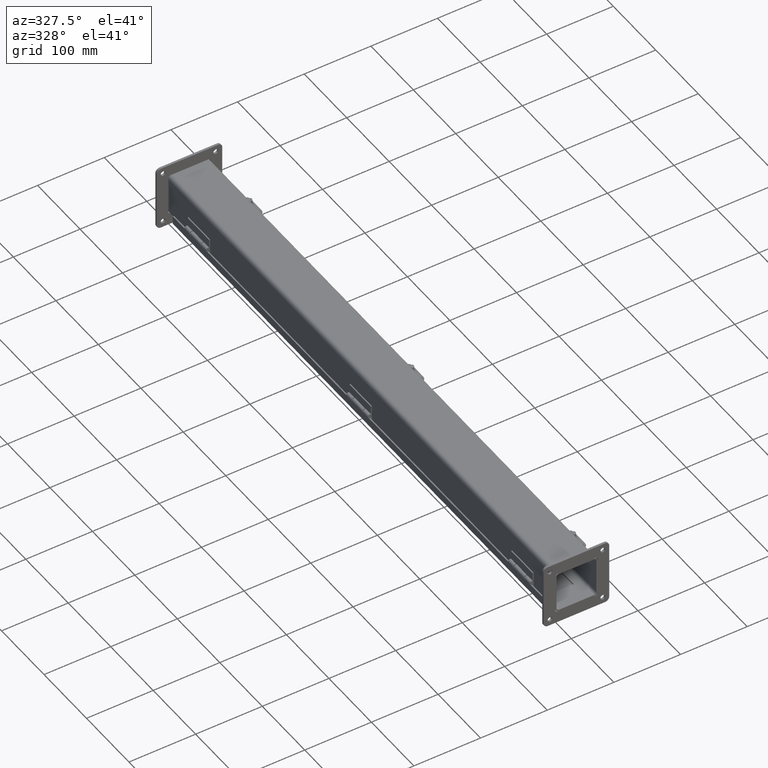
[diagram: clean part render]
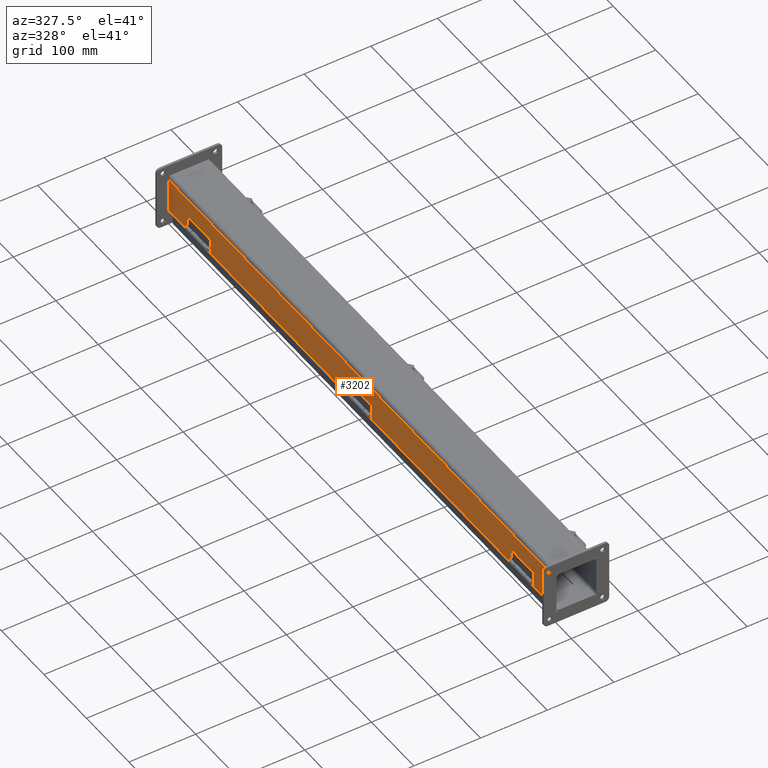
[diagram: same view with one face highlighted and labeled with its STEP entity id]
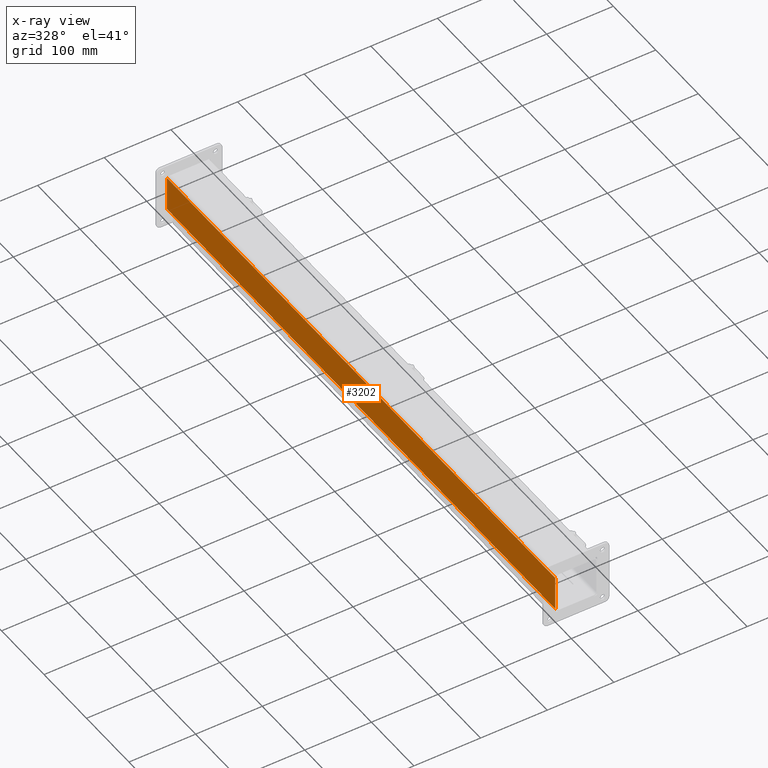
[diagram: x-ray of the same camera — body ghosted, the highlighted face saturated]
A machine part, auxiliary view. The second image highlights one B-rep face of the part: STEP entity #3202.
The next image is the same camera in x-ray: the body ghosted, the highlighted face saturated — about 0% of this face is hidden behind the body in this view.
In plain terms, the highlighted planar face has unit normal (-1, -0, 0).
Its self-contained STEP definition (entity closure, byte-faithful):
#199=PLANE($,#3427);
#339=FACE_OUTER_BOUND($,#516,.T.);
#516=EDGE_LOOP($,(#2263,#2264,#2265,#2266));
#852=LINE($,#4769,#1162);
#876=LINE($,#4822,#1186);
#879=LINE($,#4829,#1189);
#881=LINE($,#4832,#1191);
#1162=VECTOR($,#3777,36.);
#1186=VECTOR($,#3831,2.03949999999999);
#1189=VECTOR($,#3838,2.0395);
#1191=VECTOR($,#3842,36.);
#1469=VERTEX_POINT($,#4766);
#1470=VERTEX_POINT($,#4768);
#1484=VERTEX_POINT($,#4820);
#1486=VERTEX_POINT($,#4828);
#1751=EDGE_CURVE($,#1470,#1469,#852,.T.);
#1778=EDGE_CURVE($,#1484,#1469,#876,.T.);
#1781=EDGE_CURVE($,#1470,#1486,#879,.T.);
#1783=EDGE_CURVE($,#1484,#1486,#881,.T.);
#2263=ORIENTED_EDGE($,*,*,#1751,.T.);
#2264=ORIENTED_EDGE($,*,*,#1778,.F.);
#2265=ORIENTED_EDGE($,*,*,#1783,.T.);
#2266=ORIENTED_EDGE($,*,*,#1781,.F.);
#3202=ADVANCED_FACE($,(#339),#199,.T.);
#3427=AXIS2_PLACEMENT_3D($,#4846,#3858,#3859);
#3777=DIRECTION($,(3.0267214751144E-016,-1.,1.74838271594513E-016));
#3831=DIRECTION($,(-9.49410759657493E-016,-2.95822839457879E-031,-1.));
#3838=DIRECTION($,(6.56265517505149E-017,1.84551508905319E-016,1.));
#3842=DIRECTION($,(-3.0267214751144E-016,1.,-3.12814494456074E-033));
#3858=DIRECTION('center_axis',(-1.,-3.0267214751144E-016,9.47449108705546E-016));
#3859=DIRECTION('ref_axis',(1.12798659301916E-015,-3.05966975290397E-016,
1.));
#4766=CARTESIAN_POINT('',(-1.25,-18.,-2.19574999999999));
#4768=CARTESIAN_POINT('',(-1.25000000000001,18.,-2.19575));
#4769=CARTESIAN_POINT($,(-1.25000000000001,9.,-2.19575));
#4820=CARTESIAN_POINT('',(-1.25,-18.,-0.15625));
#4822=CARTESIAN_POINT($,(-1.25,-18.,-0.156249999999993));
#4828=CARTESIAN_POINT('',(-1.25000000000001,18.,-0.15625));
#4829=CARTESIAN_POINT($,(-1.25000000000001,18.,0.450862780306228));
#4832=CARTESIAN_POINT($,(-1.25,3.88706158817715E-016,-0.15625));
#4846=CARTESIAN_POINT('Origin',(-1.25,8.47739305068223E-016,-1.13934680492344));